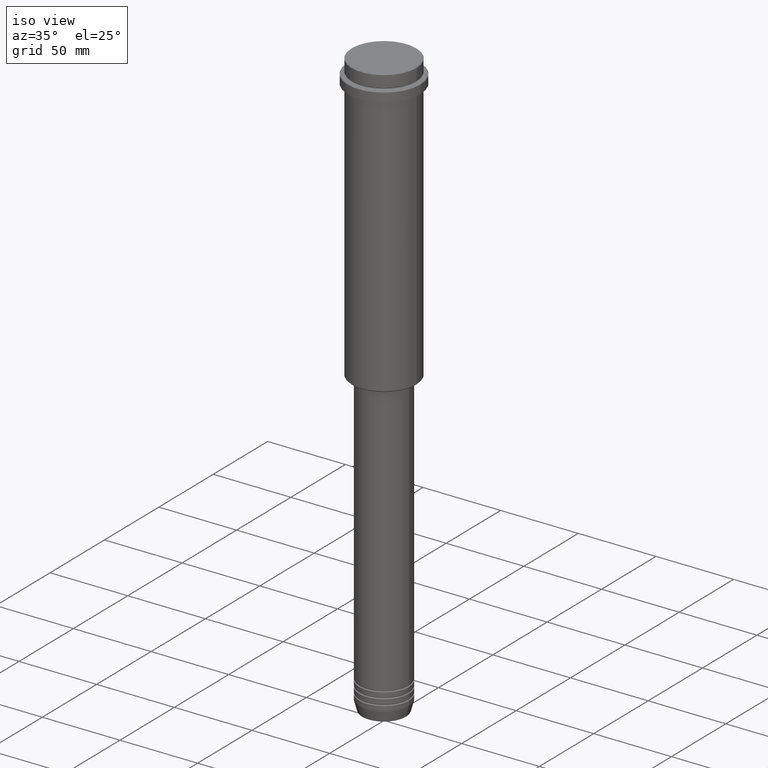
[diagram: clean part render]
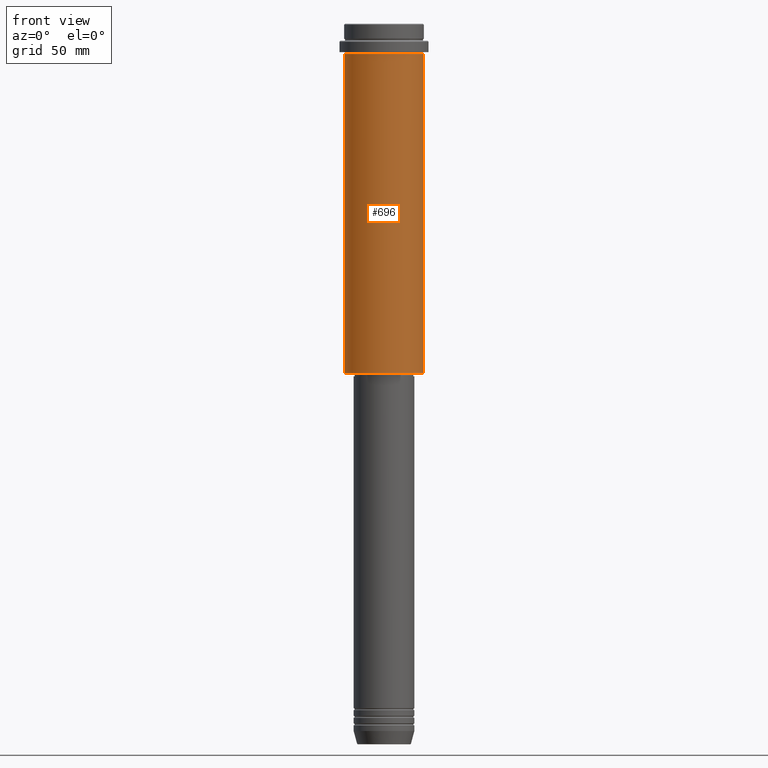
[diagram: tour spotlight — one face highlighted and labeled with its STEP entity id]
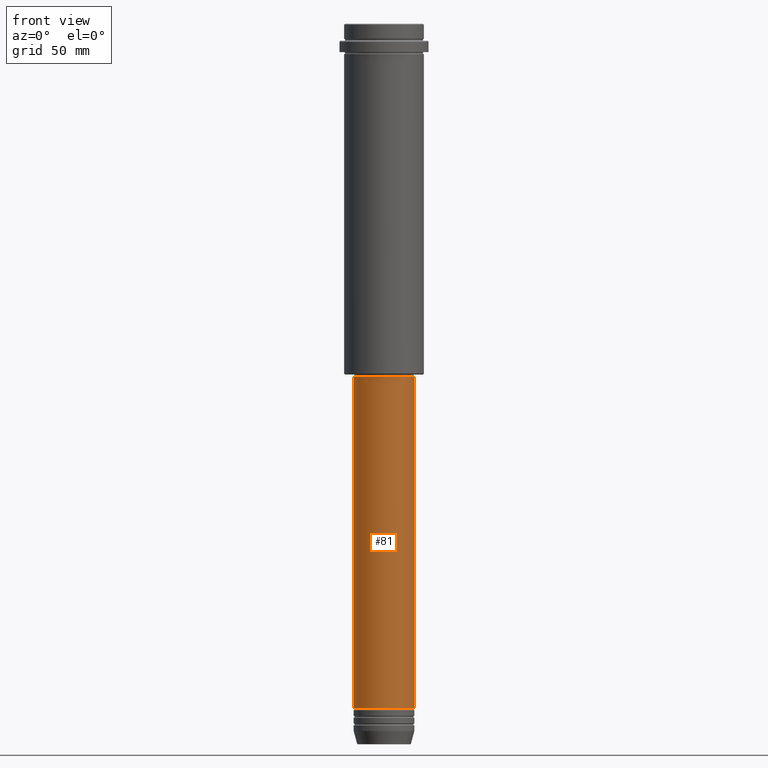
[diagram: tour spotlight — one face highlighted and labeled with its STEP entity id]
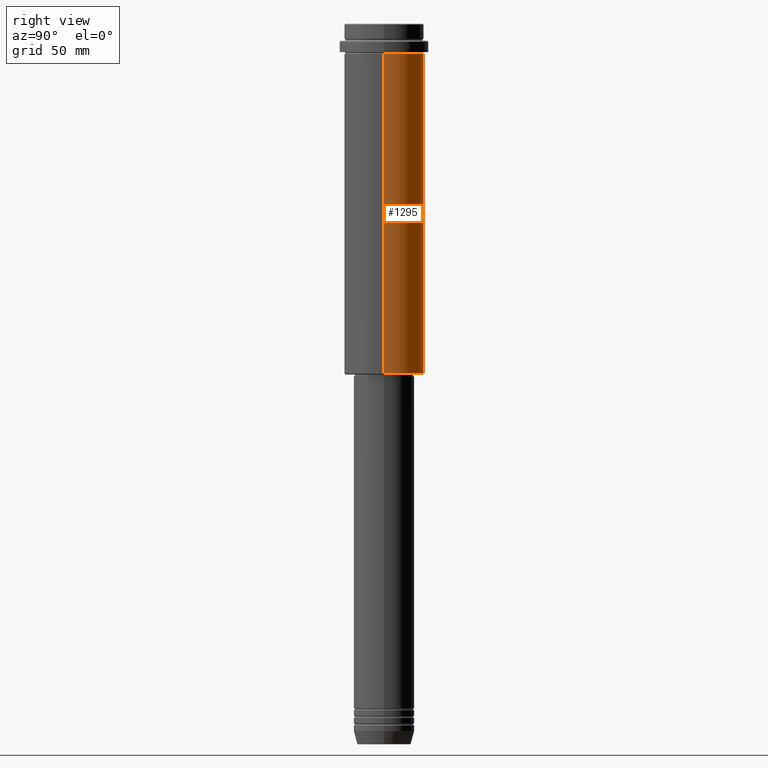
[diagram: tour spotlight — one face highlighted and labeled with its STEP entity id]
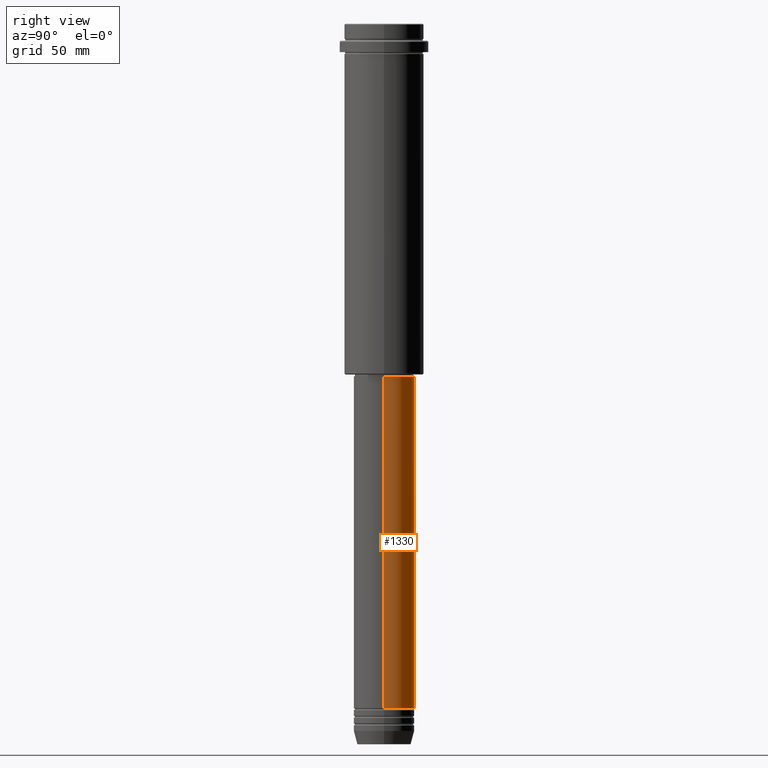
[diagram: tour spotlight — one face highlighted and labeled with its STEP entity id]
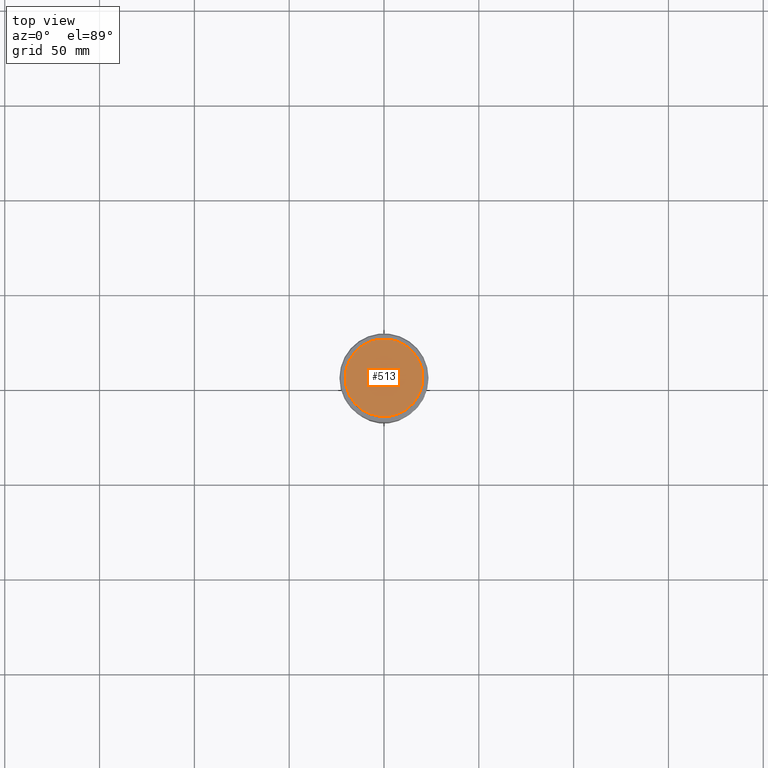
[diagram: tour spotlight — one face highlighted and labeled with its STEP entity id]
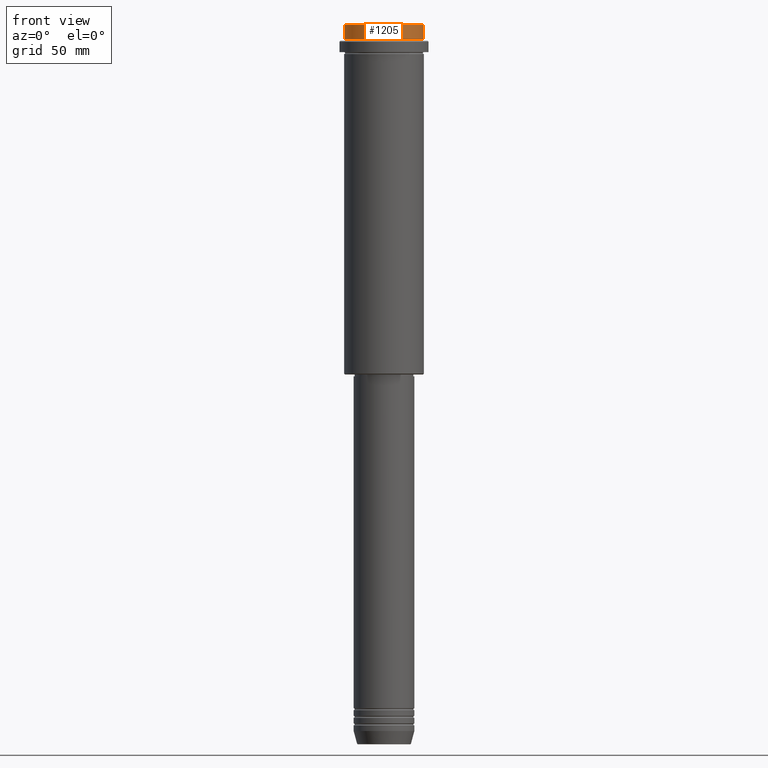
[diagram: tour spotlight — one face highlighted and labeled with its STEP entity id]
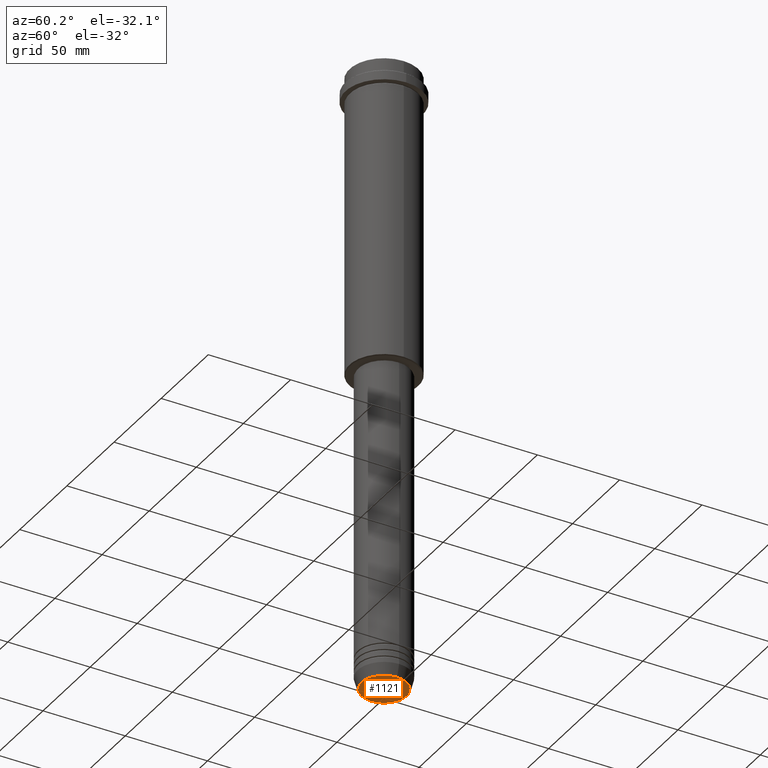
[diagram: tour spotlight — one face highlighted and labeled with its STEP entity id]
A machine part: a face-by-face anatomy tour. The part has 52 B-rep faces; the first image is the clean iso view, then the 7 largest visible faces are spotlighted one at a time (largest first), each with its STEP entity span.

Face 1 — front view, entity #696. In plain terms, the highlighted cylindrical surface (partial cylindrical patch) has radius 21 mm, axis along (-0, -0, 1).
Definition (entity closure, byte-faithful):
#16 = ORIENTED_EDGE ( 'NONE', *, *, #1086, .F. ) ;
#62 = EDGE_LOOP ( 'NONE', ( #16, #115, #693, #489 ) ) ;
#110 = DIRECTION ( 'NONE',  ( -0.000000000000000000, -0.000000000000000000, 1.000000000000000000 ) ) ;
#115 = ORIENTED_EDGE ( 'NONE', *, *, #553, .T. ) ;
#263 = VERTEX_POINT ( 'NONE', #725 ) ;
#264 = AXIS2_PLACEMENT_3D ( 'NONE', #1291, #442, #980 ) ;
#280 = CYLINDRICAL_SURFACE ( 'NONE', #525, 20.99999999999999645 ) ;
#332 = AXIS2_PLACEMENT_3D ( 'NONE', #762, #110, #755 ) ;
#442 = DIRECTION ( 'NONE',  ( -0.000000000000000000, -0.000000000000000000, 1.000000000000000000 ) ) ;
#489 = ORIENTED_EDGE ( 'NONE', *, *, #611, .F. ) ;
#525 = AXIS2_PLACEMENT_3D ( 'NONE', #932, #679, #1361 ) ;
#553 = EDGE_CURVE ( 'NONE', #803, #263, #1399, .T. ) ;
#611 = EDGE_CURVE ( 'NONE', #924, #691, #776, .T. ) ;
#657 = CARTESIAN_POINT ( 'NONE',  ( -20.99999999999999645, 2.571758278209441267E-15, -16.00000000000000355 ) ) ;
#679 = DIRECTION ( 'NONE',  ( -0.000000000000000000, -0.000000000000000000, 1.000000000000000000 ) ) ;
#691 = VERTEX_POINT ( 'NONE', #1365 ) ;
#692 = LINE ( 'NONE', #716, #773 ) ;
#693 = ORIENTED_EDGE ( 'NONE', *, *, #1166, .T. ) ;
#696 = ADVANCED_FACE ( 'NONE', ( #1246 ), #280, .T. ) ;
#716 = CARTESIAN_POINT ( 'NONE',  ( -20.99999999999999645, 2.571758278209441267E-15, 0.000000000000000000 ) ) ;
#724 = CARTESIAN_POINT ( 'NONE',  ( 20.99999999999999645, 0.000000000000000000, 0.000000000000000000 ) ) ;
#725 = CARTESIAN_POINT ( 'NONE',  ( 20.99999999999999645, 0.000000000000000000, -184.4999999999999432 ) ) ;
#755 = DIRECTION ( 'NONE',  ( 1.000000000000000000, 0.000000000000000000, 0.000000000000000000 ) ) ;
#762 = CARTESIAN_POINT ( 'NONE',  ( 0.000000000000000000, 0.000000000000000000, -16.00000000000000355 ) ) ;
#773 = VECTOR ( 'NONE', #807, 1000.000000000000000 ) ;
#776 = CIRCLE ( 'NONE', #332, 20.99999999999999645 ) ;
#803 = VERTEX_POINT ( 'NONE', #1257 ) ;
#807 = DIRECTION ( 'NONE',  ( -0.000000000000000000, -0.000000000000000000, 1.000000000000000000 ) ) ;
#924 = VERTEX_POINT ( 'NONE', #657 ) ;
#932 = CARTESIAN_POINT ( 'NONE',  ( 0.000000000000000000, 0.000000000000000000, 0.000000000000000000 ) ) ;
#980 = DIRECTION ( 'NONE',  ( -1.000000000000000000, 0.000000000000000000, 0.000000000000000000 ) ) ;
#1080 = DIRECTION ( 'NONE',  ( -0.000000000000000000, -0.000000000000000000, 1.000000000000000000 ) ) ;
#1086 = EDGE_CURVE ( 'NONE', #803, #924, #692, .T. ) ;
#1123 = VECTOR ( 'NONE', #1080, 1000.000000000000000 ) ;
#1166 = EDGE_CURVE ( 'NONE', #263, #691, #1402, .T. ) ;
#1246 = FACE_OUTER_BOUND ( 'NONE', #62, .T. ) ;
#1257 = CARTESIAN_POINT ( 'NONE',  ( -20.99999999999999645, 2.571758278209441267E-15, -184.4999999999999432 ) ) ;
#1291 = CARTESIAN_POINT ( 'NONE',  ( 0.000000000000000000, 0.000000000000000000, -184.4999999999999432 ) ) ;
#1361 = DIRECTION ( 'NONE',  ( 1.000000000000000000, 0.000000000000000000, 0.000000000000000000 ) ) ;
#1365 = CARTESIAN_POINT ( 'NONE',  ( 20.99999999999999645, 0.000000000000000000, -16.00000000000000355 ) ) ;
#1399 = CIRCLE ( 'NONE', #264, 20.99999999999999645 ) ;
#1402 = LINE ( 'NONE', #724, #1123 ) ;

Face 2 — front view, entity #81. In plain terms, the highlighted cylindrical surface (edge-blend (fillet) strip) has radius 16 mm, axis along (-0, -0, 1).
Definition (entity closure, byte-faithful):
#11 = DIRECTION ( 'NONE',  ( -0.000000000000000000, -0.000000000000000000, 1.000000000000000000 ) ) ;
#51 = FACE_OUTER_BOUND ( 'NONE', #467, .T. ) ;
#81 = ADVANCED_FACE ( 'NONE', ( #51 ), #336, .T. ) ;
#98 = DIRECTION ( 'NONE',  ( -0.000000000000000000, -0.000000000000000000, 1.000000000000000000 ) ) ;
#130 = VERTEX_POINT ( 'NONE', #827 ) ;
#216 = ORIENTED_EDGE ( 'NONE', *, *, #935, .T. ) ;
#336 = CYLINDRICAL_SURFACE ( 'NONE', #1044, 16.00000000000000000 ) ;
#349 = DIRECTION ( 'NONE',  ( -0.000000000000000000, -0.000000000000000000, 1.000000000000000000 ) ) ;
#356 = CARTESIAN_POINT ( 'NONE',  ( 16.00000000000000000, 0.000000000000000000, 0.000000000000000000 ) ) ;
#363 = CARTESIAN_POINT ( 'NONE',  ( 0.000000000000000000, 0.000000000000000000, -185.9999999999999147 ) ) ;
#365 = EDGE_CURVE ( 'NONE', #633, #444, #1259, .T. ) ;
#405 = LINE ( 'NONE', #1060, #421 ) ;
#421 = VECTOR ( 'NONE', #1247, 1000.000000000000000 ) ;
#431 = DIRECTION ( 'NONE',  ( 1.000000000000000000, 0.000000000000000000, 0.000000000000000000 ) ) ;
#444 = VERTEX_POINT ( 'NONE', #1332 ) ;
#453 = EDGE_CURVE ( 'NONE', #1252, #130, #1048, .T. ) ;
#467 = EDGE_LOOP ( 'NONE', ( #739, #1226, #216, #1363 ) ) ;
#528 = CARTESIAN_POINT ( 'NONE',  ( 0.000000000000000000, 0.000000000000000000, 0.000000000000000000 ) ) ;
#571 = DIRECTION ( 'NONE',  ( 1.000000000000000000, 0.000000000000000000, 0.000000000000000000 ) ) ;
#633 = VERTEX_POINT ( 'NONE', #1349 ) ;
#638 = AXIS2_PLACEMENT_3D ( 'NONE', #1145, #1065, #963 ) ;
#739 = ORIENTED_EDGE ( 'NONE', *, *, #1115, .F. ) ;
#827 = CARTESIAN_POINT ( 'NONE',  ( 16.00000000000000355, 0.000000000000000000, -185.9999999999999147 ) ) ;
#830 = CARTESIAN_POINT ( 'NONE',  ( -16.00000000000000355, 1.959434878635765526E-15, -185.9999999999999147 ) ) ;
#935 = EDGE_CURVE ( 'NONE', #444, #130, #1098, .T. ) ;
#963 = DIRECTION ( 'NONE',  ( 1.000000000000000000, 0.000000000000000000, 0.000000000000000000 ) ) ;
#1044 = AXIS2_PLACEMENT_3D ( 'NONE', #528, #98, #431 ) ;
#1048 = CIRCLE ( 'NONE', #1267, 16.00000000000000355 ) ;
#1060 = CARTESIAN_POINT ( 'NONE',  ( -16.00000000000000000, 1.959434878635765131E-15, 0.000000000000000000 ) ) ;
#1065 = DIRECTION ( 'NONE',  ( -0.000000000000000000, -0.000000000000000000, 1.000000000000000000 ) ) ;
#1098 = LINE ( 'NONE', #356, #1374 ) ;
#1115 = EDGE_CURVE ( 'NONE', #633, #1252, #405, .T. ) ;
#1145 = CARTESIAN_POINT ( 'NONE',  ( 0.000000000000000000, 0.000000000000000000, -360.9999999999998863 ) ) ;
#1226 = ORIENTED_EDGE ( 'NONE', *, *, #365, .T. ) ;
#1247 = DIRECTION ( 'NONE',  ( -0.000000000000000000, -0.000000000000000000, 1.000000000000000000 ) ) ;
#1252 = VERTEX_POINT ( 'NONE', #830 ) ;
#1259 = CIRCLE ( 'NONE', #638, 16.00000000000000000 ) ;
#1267 = AXIS2_PLACEMENT_3D ( 'NONE', #363, #349, #571 ) ;
#1332 = CARTESIAN_POINT ( 'NONE',  ( 16.00000000000000000, 0.000000000000000000, -360.9999999999998863 ) ) ;
#1349 = CARTESIAN_POINT ( 'NONE',  ( -16.00000000000000000, 1.959434878635765131E-15, -360.9999999999998863 ) ) ;
#1363 = ORIENTED_EDGE ( 'NONE', *, *, #453, .F. ) ;
#1374 = VECTOR ( 'NONE', #11, 1000.000000000000000 ) ;

Face 3 — right view, entity #1295. In plain terms, the highlighted cylindrical surface (partial cylindrical patch) has radius 21 mm, axis along (-0, -0, 1).
Definition (entity closure, byte-faithful):
#71 = AXIS2_PLACEMENT_3D ( 'NONE', #668, #1206, #771 ) ;
#218 = DIRECTION ( 'NONE',  ( -1.000000000000000000, 0.000000000000000000, 0.000000000000000000 ) ) ;
#263 = VERTEX_POINT ( 'NONE', #725 ) ;
#282 = ORIENTED_EDGE ( 'NONE', *, *, #1166, .F. ) ;
#308 = AXIS2_PLACEMENT_3D ( 'NONE', #775, #1324, #1312 ) ;
#469 = ORIENTED_EDGE ( 'NONE', *, *, #878, .F. ) ;
#541 = CYLINDRICAL_SURFACE ( 'NONE', #71, 20.99999999999999645 ) ;
#657 = CARTESIAN_POINT ( 'NONE',  ( -20.99999999999999645, 2.571758278209441267E-15, -16.00000000000000355 ) ) ;
#668 = CARTESIAN_POINT ( 'NONE',  ( 0.000000000000000000, 0.000000000000000000, 0.000000000000000000 ) ) ;
#678 = EDGE_LOOP ( 'NONE', ( #1173, #1256, #469, #282 ) ) ;
#691 = VERTEX_POINT ( 'NONE', #1365 ) ;
#692 = LINE ( 'NONE', #716, #773 ) ;
#716 = CARTESIAN_POINT ( 'NONE',  ( -20.99999999999999645, 2.571758278209441267E-15, 0.000000000000000000 ) ) ;
#724 = CARTESIAN_POINT ( 'NONE',  ( 20.99999999999999645, 0.000000000000000000, 0.000000000000000000 ) ) ;
#725 = CARTESIAN_POINT ( 'NONE',  ( 20.99999999999999645, 0.000000000000000000, -184.4999999999999432 ) ) ;
#729 = AXIS2_PLACEMENT_3D ( 'NONE', #1341, #752, #218 ) ;
#752 = DIRECTION ( 'NONE',  ( -0.000000000000000000, -0.000000000000000000, 1.000000000000000000 ) ) ;
#771 = DIRECTION ( 'NONE',  ( 1.000000000000000000, 0.000000000000000000, 0.000000000000000000 ) ) ;
#773 = VECTOR ( 'NONE', #807, 1000.000000000000000 ) ;
#775 = CARTESIAN_POINT ( 'NONE',  ( 0.000000000000000000, 0.000000000000000000, -16.00000000000000355 ) ) ;
#803 = VERTEX_POINT ( 'NONE', #1257 ) ;
#807 = DIRECTION ( 'NONE',  ( -0.000000000000000000, -0.000000000000000000, 1.000000000000000000 ) ) ;
#878 = EDGE_CURVE ( 'NONE', #691, #924, #1082, .T. ) ;
#892 = CIRCLE ( 'NONE', #729, 20.99999999999999645 ) ;
#924 = VERTEX_POINT ( 'NONE', #657 ) ;
#1080 = DIRECTION ( 'NONE',  ( -0.000000000000000000, -0.000000000000000000, 1.000000000000000000 ) ) ;
#1082 = CIRCLE ( 'NONE', #308, 20.99999999999999645 ) ;
#1086 = EDGE_CURVE ( 'NONE', #803, #924, #692, .T. ) ;
#1117 = FACE_OUTER_BOUND ( 'NONE', #678, .T. ) ;
#1123 = VECTOR ( 'NONE', #1080, 1000.000000000000000 ) ;
#1166 = EDGE_CURVE ( 'NONE', #263, #691, #1402, .T. ) ;
#1173 = ORIENTED_EDGE ( 'NONE', *, *, #1411, .T. ) ;
#1206 = DIRECTION ( 'NONE',  ( -0.000000000000000000, -0.000000000000000000, 1.000000000000000000 ) ) ;
#1256 = ORIENTED_EDGE ( 'NONE', *, *, #1086, .T. ) ;
#1257 = CARTESIAN_POINT ( 'NONE',  ( -20.99999999999999645, 2.571758278209441267E-15, -184.4999999999999432 ) ) ;
#1295 = ADVANCED_FACE ( 'NONE', ( #1117 ), #541, .T. ) ;
#1312 = DIRECTION ( 'NONE',  ( 1.000000000000000000, 0.000000000000000000, 0.000000000000000000 ) ) ;
#1324 = DIRECTION ( 'NONE',  ( -0.000000000000000000, -0.000000000000000000, 1.000000000000000000 ) ) ;
#1341 = CARTESIAN_POINT ( 'NONE',  ( 0.000000000000000000, 0.000000000000000000, -184.4999999999999432 ) ) ;
#1365 = CARTESIAN_POINT ( 'NONE',  ( 20.99999999999999645, 0.000000000000000000, -16.00000000000000355 ) ) ;
#1402 = LINE ( 'NONE', #724, #1123 ) ;
#1411 = EDGE_CURVE ( 'NONE', #263, #803, #892, .T. ) ;

Face 4 — right view, entity #1330. In plain terms, the highlighted cylindrical surface (edge-blend (fillet) strip) has radius 16 mm, axis along (-0, -0, 1).
Definition (entity closure, byte-faithful):
#11 = DIRECTION ( 'NONE',  ( -0.000000000000000000, -0.000000000000000000, 1.000000000000000000 ) ) ;
#32 = CARTESIAN_POINT ( 'NONE',  ( 0.000000000000000000, 0.000000000000000000, -360.9999999999998863 ) ) ;
#44 = ORIENTED_EDGE ( 'NONE', *, *, #1115, .T. ) ;
#130 = VERTEX_POINT ( 'NONE', #827 ) ;
#323 = EDGE_CURVE ( 'NONE', #444, #633, #621, .T. ) ;
#356 = CARTESIAN_POINT ( 'NONE',  ( 16.00000000000000000, 0.000000000000000000, 0.000000000000000000 ) ) ;
#368 = DIRECTION ( 'NONE',  ( -0.000000000000000000, -0.000000000000000000, 1.000000000000000000 ) ) ;
#405 = LINE ( 'NONE', #1060, #421 ) ;
#421 = VECTOR ( 'NONE', #1247, 1000.000000000000000 ) ;
#428 = DIRECTION ( 'NONE',  ( -0.000000000000000000, -0.000000000000000000, 1.000000000000000000 ) ) ;
#444 = VERTEX_POINT ( 'NONE', #1332 ) ;
#446 = DIRECTION ( 'NONE',  ( 1.000000000000000000, 0.000000000000000000, 0.000000000000000000 ) ) ;
#458 = CIRCLE ( 'NONE', #686, 16.00000000000000355 ) ;
#544 = ORIENTED_EDGE ( 'NONE', *, *, #323, .T. ) ;
#621 = CIRCLE ( 'NONE', #1151, 16.00000000000000000 ) ;
#633 = VERTEX_POINT ( 'NONE', #1349 ) ;
#656 = DIRECTION ( 'NONE',  ( -0.000000000000000000, -0.000000000000000000, 1.000000000000000000 ) ) ;
#661 = CARTESIAN_POINT ( 'NONE',  ( 0.000000000000000000, 0.000000000000000000, 0.000000000000000000 ) ) ;
#686 = AXIS2_PLACEMENT_3D ( 'NONE', #847, #428, #1282 ) ;
#827 = CARTESIAN_POINT ( 'NONE',  ( 16.00000000000000355, 0.000000000000000000, -185.9999999999999147 ) ) ;
#830 = CARTESIAN_POINT ( 'NONE',  ( -16.00000000000000355, 1.959434878635765526E-15, -185.9999999999999147 ) ) ;
#847 = CARTESIAN_POINT ( 'NONE',  ( 0.000000000000000000, 0.000000000000000000, -185.9999999999999147 ) ) ;
#864 = AXIS2_PLACEMENT_3D ( 'NONE', #661, #656, #446 ) ;
#935 = EDGE_CURVE ( 'NONE', #444, #130, #1098, .T. ) ;
#1017 = EDGE_LOOP ( 'NONE', ( #544, #44, #1182, #1415 ) ) ;
#1060 = CARTESIAN_POINT ( 'NONE',  ( -16.00000000000000000, 1.959434878635765131E-15, 0.000000000000000000 ) ) ;
#1098 = LINE ( 'NONE', #356, #1374 ) ;
#1110 = CYLINDRICAL_SURFACE ( 'NONE', #864, 16.00000000000000000 ) ;
#1115 = EDGE_CURVE ( 'NONE', #633, #1252, #405, .T. ) ;
#1140 = DIRECTION ( 'NONE',  ( 1.000000000000000000, 0.000000000000000000, 0.000000000000000000 ) ) ;
#1151 = AXIS2_PLACEMENT_3D ( 'NONE', #32, #368, #1140 ) ;
#1165 = EDGE_CURVE ( 'NONE', #130, #1252, #458, .T. ) ;
#1182 = ORIENTED_EDGE ( 'NONE', *, *, #1165, .F. ) ;
#1201 = FACE_OUTER_BOUND ( 'NONE', #1017, .T. ) ;
#1247 = DIRECTION ( 'NONE',  ( -0.000000000000000000, -0.000000000000000000, 1.000000000000000000 ) ) ;
#1252 = VERTEX_POINT ( 'NONE', #830 ) ;
#1282 = DIRECTION ( 'NONE',  ( 1.000000000000000000, 0.000000000000000000, 0.000000000000000000 ) ) ;
#1330 = ADVANCED_FACE ( 'NONE', ( #1201 ), #1110, .T. ) ;
#1332 = CARTESIAN_POINT ( 'NONE',  ( 16.00000000000000000, 0.000000000000000000, -360.9999999999998863 ) ) ;
#1349 = CARTESIAN_POINT ( 'NONE',  ( -16.00000000000000000, 1.959434878635765131E-15, -360.9999999999998863 ) ) ;
#1374 = VECTOR ( 'NONE', #11, 1000.000000000000000 ) ;
#1415 = ORIENTED_EDGE ( 'NONE', *, *, #935, .F. ) ;

Face 5 — top view, entity #513. In plain terms, the highlighted planar face has unit normal (0, -0, 1).
Definition (entity closure, byte-faithful):
#30 = DIRECTION ( 'NONE',  ( 1.000000000000000000, 0.000000000000000000, 0.000000000000000000 ) ) ;
#96 = VERTEX_POINT ( 'NONE', #217 ) ;
#155 = EDGE_CURVE ( 'NONE', #562, #96, #374, .T. ) ;
#158 = CARTESIAN_POINT ( 'NONE',  ( 0.000000000000000000, 0.000000000000000000, 0.000000000000000000 ) ) ;
#204 = AXIS2_PLACEMENT_3D ( 'NONE', #158, #1269, #595 ) ;
#217 = CARTESIAN_POINT ( 'NONE',  ( -20.50000000000001776, 0.000000000000000000, 0.000000000000000000 ) ) ;
#288 = AXIS2_PLACEMENT_3D ( 'NONE', #1383, #934, #30 ) ;
#374 = CIRCLE ( 'NONE', #288, 20.50000000000001776 ) ;
#465 = EDGE_CURVE ( 'NONE', #96, #562, #951, .T. ) ;
#513 = ADVANCED_FACE ( 'NONE', ( #699 ), #1144, .T. ) ;
#562 = VERTEX_POINT ( 'NONE', #902 ) ;
#595 = DIRECTION ( 'NONE',  ( 1.000000000000000000, 0.000000000000000000, 0.000000000000000000 ) ) ;
#652 = DIRECTION ( 'NONE',  ( 1.000000000000000000, 0.000000000000000000, 0.000000000000000000 ) ) ;
#699 = FACE_OUTER_BOUND ( 'NONE', #962, .T. ) ;
#712 = AXIS2_PLACEMENT_3D ( 'NONE', #1406, #1197, #652 ) ;
#731 = ORIENTED_EDGE ( 'NONE', *, *, #465, .T. ) ;
#902 = CARTESIAN_POINT ( 'NONE',  ( 20.50000000000001776, 2.541142108230758663E-15, 0.000000000000000000 ) ) ;
#934 = DIRECTION ( 'NONE',  ( -0.000000000000000000, -0.000000000000000000, 1.000000000000000000 ) ) ;
#951 = CIRCLE ( 'NONE', #712, 20.50000000000001776 ) ;
#962 = EDGE_LOOP ( 'NONE', ( #731, #1114 ) ) ;
#1114 = ORIENTED_EDGE ( 'NONE', *, *, #155, .T. ) ;
#1144 = PLANE ( 'NONE',  #204 ) ;
#1197 = DIRECTION ( 'NONE',  ( -0.000000000000000000, -0.000000000000000000, 1.000000000000000000 ) ) ;
#1269 = DIRECTION ( 'NONE',  ( 0.000000000000000000, -0.000000000000000000, 1.000000000000000000 ) ) ;
#1383 = CARTESIAN_POINT ( 'NONE',  ( 0.000000000000000000, 0.000000000000000000, 0.000000000000000000 ) ) ;
#1406 = CARTESIAN_POINT ( 'NONE',  ( 0.000000000000000000, 0.000000000000000000, 0.000000000000000000 ) ) ;

Face 6 — front view, entity #1205. In plain terms, the highlighted cylindrical surface (partial cylindrical patch) has radius 21 mm, axis along (-0, -0, 1).
Definition (entity closure, byte-faithful):
#127 = VERTEX_POINT ( 'NONE', #1063 ) ;
#139 = VECTOR ( 'NONE', #1176, 1000.000000000000000 ) ;
#151 = CARTESIAN_POINT ( 'NONE',  ( 0.000000000000000000, 0.000000000000000000, -7.999999999999998224 ) ) ;
#189 = AXIS2_PLACEMENT_3D ( 'NONE', #1170, #1394, #327 ) ;
#230 = CARTESIAN_POINT ( 'NONE',  ( -20.99999999999999645, 2.571758278209441267E-15, -0.4999999999999796274 ) ) ;
#247 = DIRECTION ( 'NONE',  ( 1.000000000000000000, 0.000000000000000000, 0.000000000000000000 ) ) ;
#312 = DIRECTION ( 'NONE',  ( 0.000000000000000000, 0.000000000000000000, -1.000000000000000000 ) ) ;
#327 = DIRECTION ( 'NONE',  ( 1.000000000000000000, 0.000000000000000000, 0.000000000000000000 ) ) ;
#335 = VERTEX_POINT ( 'NONE', #488 ) ;
#364 = EDGE_LOOP ( 'NONE', ( #1315, #1146, #744, #749 ) ) ;
#449 = DIRECTION ( 'NONE',  ( -0.000000000000000000, -0.000000000000000000, 1.000000000000000000 ) ) ;
#488 = CARTESIAN_POINT ( 'NONE',  ( 20.99999999999999645, 0.000000000000000000, -0.4999999999999796274 ) ) ;
#492 = EDGE_CURVE ( 'NONE', #127, #1321, #1279, .T. ) ;
#561 = CARTESIAN_POINT ( 'NONE',  ( 20.99999999999999645, 0.000000000000000000, -7.999999999999998224 ) ) ;
#673 = DIRECTION ( 'NONE',  ( -0.000000000000000000, -0.000000000000000000, 1.000000000000000000 ) ) ;
#721 = CARTESIAN_POINT ( 'NONE',  ( -20.99999999999999645, 2.571758278209441267E-15, 0.000000000000000000 ) ) ;
#726 = AXIS2_PLACEMENT_3D ( 'NONE', #151, #449, #1027 ) ;
#732 = CYLINDRICAL_SURFACE ( 'NONE', #189, 20.99999999999999645 ) ;
#741 = EDGE_CURVE ( 'NONE', #912, #335, #777, .T. ) ;
#744 = ORIENTED_EDGE ( 'NONE', *, *, #741, .T. ) ;
#749 = ORIENTED_EDGE ( 'NONE', *, *, #1274, .T. ) ;
#757 = EDGE_CURVE ( 'NONE', #127, #912, #1373, .T. ) ;
#777 = LINE ( 'NONE', #1137, #1395 ) ;
#912 = VERTEX_POINT ( 'NONE', #561 ) ;
#966 = FACE_OUTER_BOUND ( 'NONE', #364, .T. ) ;
#987 = AXIS2_PLACEMENT_3D ( 'NONE', #1390, #312, #247 ) ;
#1027 = DIRECTION ( 'NONE',  ( 1.000000000000000000, 0.000000000000000000, 0.000000000000000000 ) ) ;
#1063 = CARTESIAN_POINT ( 'NONE',  ( -20.99999999999999645, 2.571758278209441267E-15, -7.999999999999998224 ) ) ;
#1137 = CARTESIAN_POINT ( 'NONE',  ( 20.99999999999999645, 0.000000000000000000, 0.000000000000000000 ) ) ;
#1146 = ORIENTED_EDGE ( 'NONE', *, *, #757, .T. ) ;
#1170 = CARTESIAN_POINT ( 'NONE',  ( 0.000000000000000000, 0.000000000000000000, 0.000000000000000000 ) ) ;
#1176 = DIRECTION ( 'NONE',  ( -0.000000000000000000, -0.000000000000000000, 1.000000000000000000 ) ) ;
#1205 = ADVANCED_FACE ( 'NONE', ( #966 ), #732, .T. ) ;
#1274 = EDGE_CURVE ( 'NONE', #335, #1321, #1413, .T. ) ;
#1279 = LINE ( 'NONE', #721, #139 ) ;
#1315 = ORIENTED_EDGE ( 'NONE', *, *, #492, .F. ) ;
#1321 = VERTEX_POINT ( 'NONE', #230 ) ;
#1373 = CIRCLE ( 'NONE', #726, 20.99999999999999645 ) ;
#1390 = CARTESIAN_POINT ( 'NONE',  ( 0.000000000000000000, 0.000000000000000000, -0.4999999999999796274 ) ) ;
#1394 = DIRECTION ( 'NONE',  ( -0.000000000000000000, -0.000000000000000000, 1.000000000000000000 ) ) ;
#1395 = VECTOR ( 'NONE', #673, 1000.000000000000000 ) ;
#1413 = CIRCLE ( 'NONE', #987, 20.99999999999999645 ) ;

Face 7 — auxiliary view, entity #1121. In plain terms, the highlighted planar face has unit normal (0, -0, 1).
Definition (entity closure, byte-faithful):
#3 = VERTEX_POINT ( 'NONE', #1261 ) ;
#61 = FACE_OUTER_BOUND ( 'NONE', #156, .T. ) ;
#156 = EDGE_LOOP ( 'NONE', ( #357, #1138 ) ) ;
#161 = AXIS2_PLACEMENT_3D ( 'NONE', #471, #1348, #369 ) ;
#175 = DIRECTION ( 'NONE',  ( 1.000000000000000000, 0.000000000000000000, 0.000000000000000000 ) ) ;
#357 = ORIENTED_EDGE ( 'NONE', *, *, #826, .T. ) ;
#369 = DIRECTION ( 'NONE',  ( 1.000000000000000000, 0.000000000000000000, 0.000000000000000000 ) ) ;
#471 = CARTESIAN_POINT ( 'NONE',  ( 0.000000000000000000, 0.000000000000000000, -380.0000000000000000 ) ) ;
#533 = CARTESIAN_POINT ( 'NONE',  ( 0.000000000000000000, 0.000000000000000000, -380.0000000000000000 ) ) ;
#542 = DIRECTION ( 'NONE',  ( 0.000000000000000000, 0.000000000000000000, -1.000000000000000000 ) ) ;
#607 = CARTESIAN_POINT ( 'NONE',  ( 0.000000000000000000, 0.000000000000000000, -380.0000000000000000 ) ) ;
#709 = CIRCLE ( 'NONE', #887, 13.74069215899265828 ) ;
#801 = DIRECTION ( 'NONE',  ( 0.000000000000000000, 0.000000000000000000, -1.000000000000000000 ) ) ;
#822 = DIRECTION ( 'NONE',  ( 1.000000000000000000, 0.000000000000000000, 0.000000000000000000 ) ) ;
#824 = PLANE ( 'NONE',  #161 ) ;
#826 = EDGE_CURVE ( 'NONE', #3, #880, #709, .T. ) ;
#880 = VERTEX_POINT ( 'NONE', #1217 ) ;
#887 = AXIS2_PLACEMENT_3D ( 'NONE', #533, #542, #822 ) ;
#1108 = EDGE_CURVE ( 'NONE', #880, #3, #1284, .T. ) ;
#1121 = ADVANCED_FACE ( 'NONE', ( #61 ), #824, .F. ) ;
#1138 = ORIENTED_EDGE ( 'NONE', *, *, #1108, .T. ) ;
#1174 = AXIS2_PLACEMENT_3D ( 'NONE', #607, #801, #175 ) ;
#1217 = CARTESIAN_POINT ( 'NONE',  ( -13.74069215899265828, 1.712322416342415986E-15, -380.0000000000000000 ) ) ;
#1261 = CARTESIAN_POINT ( 'NONE',  ( 13.74069215899265828, 0.000000000000000000, -380.0000000000000000 ) ) ;
#1284 = CIRCLE ( 'NONE', #1174, 13.74069215899265828 ) ;
#1348 = DIRECTION ( 'NONE',  ( 0.000000000000000000, -0.000000000000000000, 1.000000000000000000 ) ) ;